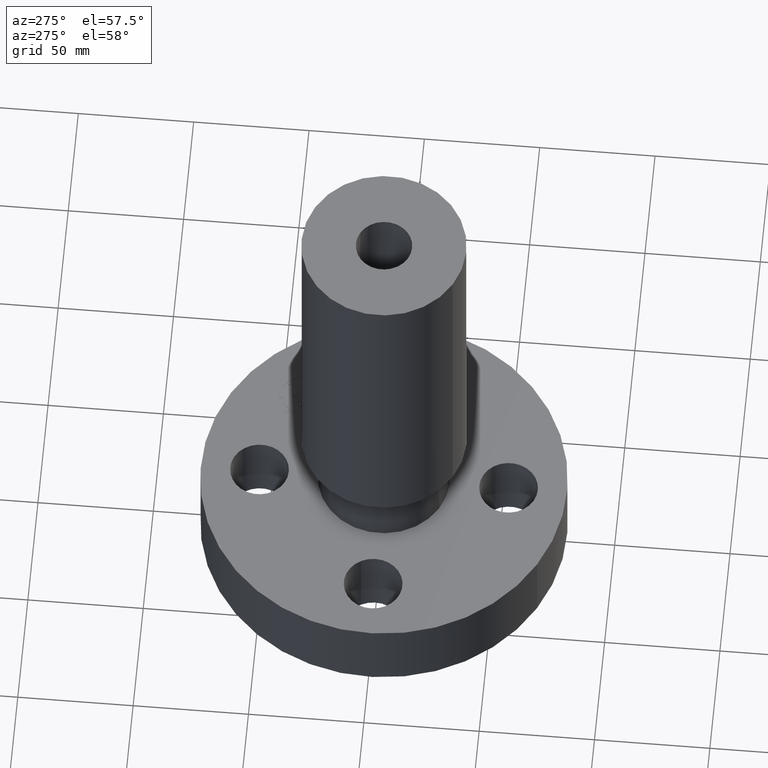
[diagram: clean part render]
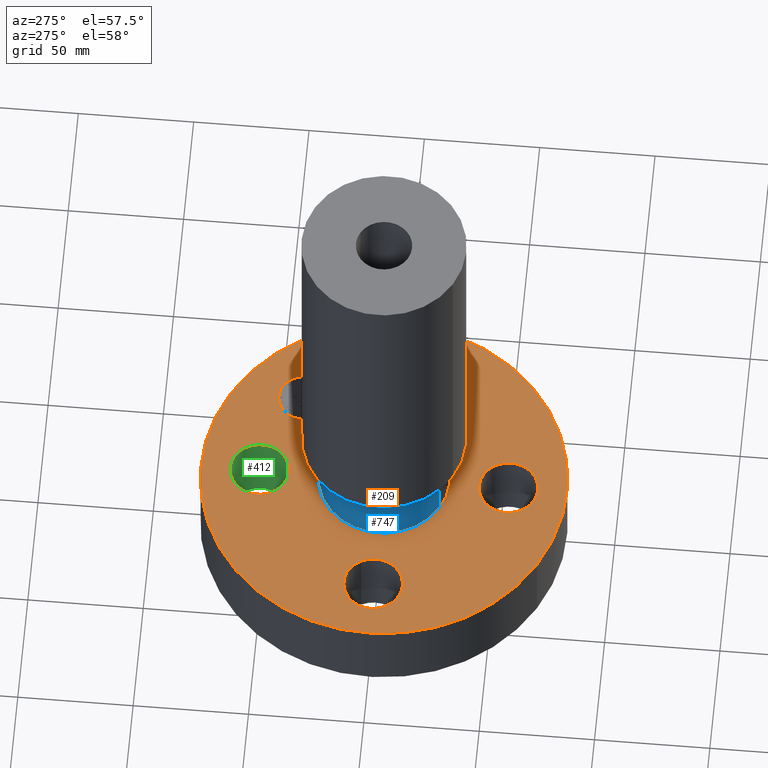
[diagram: same view with three faces highlighted in distinct colors, each labeled with its STEP entity id]
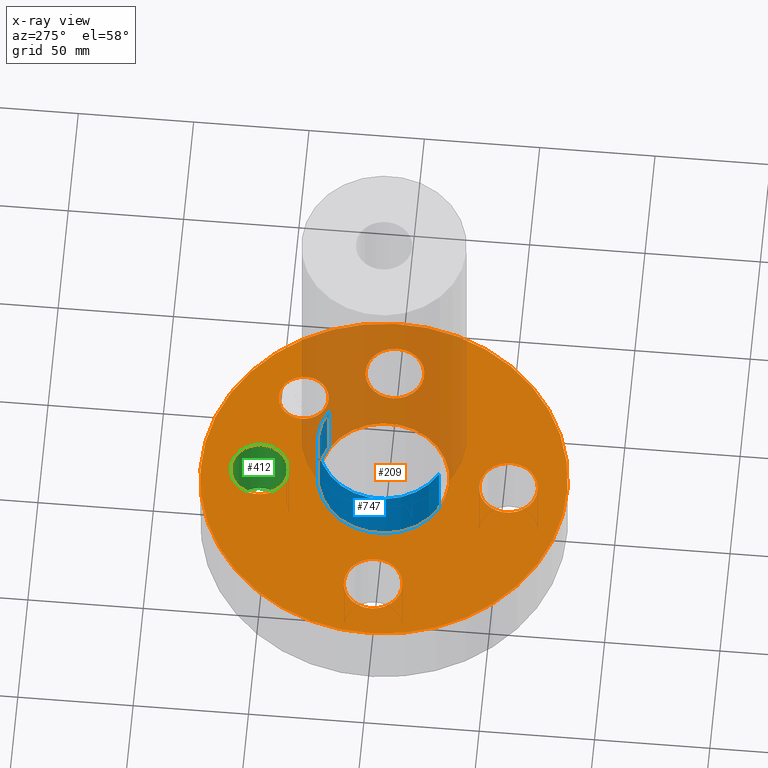
[diagram: x-ray of the same camera — body ghosted, the three highlighted faces saturated]
A machine part, auxiliary view with three faces highlighted in distinct colors.
The next image is the same camera in x-ray (body ghosted, the three faces saturated) — at least one of them is partly hidden behind the body in this view.
Their STEP definitions:

[orange] entity #209 — the highlighted planar face has unit normal (0, 0, -1).
#51=AXIS2_PLACEMENT_3D('Circle Axis2P3D',#49,#50,$) ;
#77=AXIS2_PLACEMENT_3D('Circle Axis2P3D',#75,#76,$) ;
#95=AXIS2_PLACEMENT_3D('Plane Axis2P3D',#92,#93,#94) ;
#99=AXIS2_PLACEMENT_3D('Circle Axis2P3D',#97,#98,$) ;
#108=AXIS2_PLACEMENT_3D('Circle Axis2P3D',#106,#107,$) ;
#121=AXIS2_PLACEMENT_3D('Circle Axis2P3D',#119,#120,$) ;
#130=AXIS2_PLACEMENT_3D('Circle Axis2P3D',#128,#129,$) ;
#139=AXIS2_PLACEMENT_3D('Circle Axis2P3D',#137,#138,$) ;
#148=AXIS2_PLACEMENT_3D('Circle Axis2P3D',#146,#147,$) ;
#157=AXIS2_PLACEMENT_3D('Circle Axis2P3D',#155,#156,$) ;
#166=AXIS2_PLACEMENT_3D('Circle Axis2P3D',#164,#165,$) ;
#175=AXIS2_PLACEMENT_3D('Circle Axis2P3D',#173,#174,$) ;
#184=AXIS2_PLACEMENT_3D('Circle Axis2P3D',#182,#183,$) ;
#193=AXIS2_PLACEMENT_3D('Circle Axis2P3D',#191,#192,$) ;
#202=AXIS2_PLACEMENT_3D('Circle Axis2P3D',#200,#201,$) ;
#44=CARTESIAN_POINT('Vertex',(1.68620871906,-0.239712769303,1.38000000001)) ;
#49=CARTESIAN_POINT('Axis2P3D Location',(2.12500000001,0.,1.38000000001)) ;
#53=CARTESIAN_POINT('Vertex',(2.56379128096,0.239712769303,1.38000000001)) ;
#75=CARTESIAN_POINT('Axis2P3D Location',(2.12500000001,0.,1.38000000001)) ;
#92=CARTESIAN_POINT('Axis2P3D Location',(0.,3.12500000001,1.38000000001)) ;
#97=CARTESIAN_POINT('Axis2P3D Location',(0.,0.,1.38000000001)) ;
#101=CARTESIAN_POINT('Vertex',(1.49820480814,2.74244550592,1.38000000001)) ;
#103=CARTESIAN_POINT('Vertex',(-1.49820480814,-2.74244550592,1.38000000001)) ;
#106=CARTESIAN_POINT('Axis2P3D Location',(0.,0.,1.38000000001)) ;
#119=CARTESIAN_POINT('Axis2P3D Location',(0.,0.,1.38000000001)) ;
#123=CARTESIAN_POINT('Vertex',(-0.532162347853,-0.974116643702,1.38000000001)) ;
#125=CARTESIAN_POINT('Vertex',(0.532162347853,0.974116643702,1.38000000001)) ;
#128=CARTESIAN_POINT('Axis2P3D Location',(0.,0.,1.38000000001)) ;
#137=CARTESIAN_POINT('Axis2P3D Location',(-2.79741234551E-016,-2.12500000001,1.38000000001)) ;
#141=CARTESIAN_POINT('Vertex',(-0.239712769303,-1.68620871906,1.38000000001)) ;
#143=CARTESIAN_POINT('Vertex',(0.239712769303,-2.56379128096,1.38000000001)) ;
#146=CARTESIAN_POINT('Axis2P3D Location',(2.09805925913E-016,-2.12500000001,1.38000000001)) ;
#155=CARTESIAN_POINT('Axis2P3D Location',(-2.12500000001,0.,1.38000000001)) ;
#159=CARTESIAN_POINT('Vertex',(-1.68620871906,0.239712769303,1.38000000001)) ;
#161=CARTESIAN_POINT('Vertex',(-2.56379128096,-0.239712769303,1.38000000001)) ;
#164=CARTESIAN_POINT('Axis2P3D Location',(-2.12500000001,0.,1.38000000001)) ;
#173=CARTESIAN_POINT('Axis2P3D Location',(-6.99353086378E-017,2.12500000001,1.38000000001)) ;
#177=CARTESIAN_POINT('Vertex',(0.239712769303,1.68620871906,1.38000000001)) ;
#179=CARTESIAN_POINT('Vertex',(-0.239712769303,2.56379128096,1.38000000001)) ;
#182=CARTESIAN_POINT('Axis2P3D Location',(-2.09805925913E-016,2.12500000001,1.38000000001)) ;
#191=CARTESIAN_POINT('Axis2P3D Location',(1.50260191003,1.50260191003,1.38000000001)) ;
#195=CARTESIAN_POINT('Vertex',(1.80312228903,1.20208153103,1.38000000001)) ;
#197=CARTESIAN_POINT('Vertex',(1.20208153103,1.80312228903,1.38000000001)) ;
#200=CARTESIAN_POINT('Axis2P3D Location',(1.50260191003,1.50260191003,1.38000000001)) ;
#50=DIRECTION('Axis2P3D Direction',(0.,-0.,0.0393700787402)) ;
#76=DIRECTION('Axis2P3D Direction',(0.,-0.,0.0393700787402)) ;
#93=DIRECTION('Axis2P3D Direction',(0.,0.,-0.0393700787402)) ;
#94=DIRECTION('Axis2P3D XDirection',(0.0393700787402,0.,0.)) ;
#98=DIRECTION('Axis2P3D Direction',(0.,0.,-0.0393700787402)) ;
#107=DIRECTION('Axis2P3D Direction',(0.,0.,-0.0393700787402)) ;
#120=DIRECTION('Axis2P3D Direction',(0.,0.,-0.0393700787402)) ;
#129=DIRECTION('Axis2P3D Direction',(0.,0.,-0.0393700787402)) ;
#138=DIRECTION('Axis2P3D Direction',(0.,0.,-0.0393700787402)) ;
#147=DIRECTION('Axis2P3D Direction',(0.,0.,-0.0393700787402)) ;
#156=DIRECTION('Axis2P3D Direction',(0.,0.,-0.0393700787402)) ;
#165=DIRECTION('Axis2P3D Direction',(0.,0.,-0.0393700787402)) ;
#174=DIRECTION('Axis2P3D Direction',(0.,0.,-0.0393700787402)) ;
#183=DIRECTION('Axis2P3D Direction',(0.,0.,-0.0393700787402)) ;
#192=DIRECTION('Axis2P3D Direction',(0.,0.,-0.0393700787402)) ;
#201=DIRECTION('Axis2P3D Direction',(0.,0.,-0.0393700787402)) ;
#112=ORIENTED_EDGE('',*,*,#105,.F.) ;
#113=ORIENTED_EDGE('',*,*,#110,.F.) ;
#116=ORIENTED_EDGE('',*,*,#55,.T.) ;
#117=ORIENTED_EDGE('',*,*,#79,.T.) ;
#134=ORIENTED_EDGE('',*,*,#127,.T.) ;
#135=ORIENTED_EDGE('',*,*,#132,.T.) ;
#152=ORIENTED_EDGE('',*,*,#145,.T.) ;
#153=ORIENTED_EDGE('',*,*,#150,.T.) ;
#170=ORIENTED_EDGE('',*,*,#163,.T.) ;
#171=ORIENTED_EDGE('',*,*,#168,.T.) ;
#188=ORIENTED_EDGE('',*,*,#181,.T.) ;
#189=ORIENTED_EDGE('',*,*,#186,.T.) ;
#206=ORIENTED_EDGE('',*,*,#199,.F.) ;
#207=ORIENTED_EDGE('',*,*,#204,.F.) ;
#118=FACE_BOUND('',#115,.T.) ;
#136=FACE_BOUND('',#133,.T.) ;
#154=FACE_BOUND('',#151,.T.) ;
#172=FACE_BOUND('',#169,.T.) ;
#190=FACE_BOUND('',#187,.T.) ;
#208=FACE_BOUND('',#205,.T.) ;
#209=ADVANCED_FACE('PartBody',(#114,#118,#136,#154,#172,#190,#208),#96,.F.) ;
#52=CIRCLE('generated circle',#51,0.500000000002) ;
#78=CIRCLE('generated circle',#77,0.500000000002) ;
#100=CIRCLE('generated circle',#99,3.12500000001) ;
#109=CIRCLE('generated circle',#108,3.12500000001) ;
#122=CIRCLE('generated circle',#121,1.11) ;
#131=CIRCLE('generated circle',#130,1.11) ;
#140=CIRCLE('generated circle',#139,0.500000000002) ;
#149=CIRCLE('generated circle',#148,0.500000000002) ;
#158=CIRCLE('generated circle',#157,0.500000000002) ;
#167=CIRCLE('generated circle',#166,0.500000000002) ;
#176=CIRCLE('generated circle',#175,0.500000000002) ;
#185=CIRCLE('generated circle',#184,0.500000000002) ;
#194=CIRCLE('generated circle',#193,0.424999995752) ;
#203=CIRCLE('generated circle',#202,0.424999995752) ;
#55=EDGE_CURVE('',#54,#45,#52,.F.) ;
#79=EDGE_CURVE('',#45,#54,#78,.F.) ;
#105=EDGE_CURVE('',#102,#104,#100,.T.) ;
#110=EDGE_CURVE('',#104,#102,#109,.T.) ;
#127=EDGE_CURVE('',#124,#126,#122,.T.) ;
#132=EDGE_CURVE('',#126,#124,#131,.T.) ;
#145=EDGE_CURVE('',#142,#144,#140,.T.) ;
#150=EDGE_CURVE('',#144,#142,#149,.T.) ;
#163=EDGE_CURVE('',#160,#162,#158,.T.) ;
#168=EDGE_CURVE('',#162,#160,#167,.T.) ;
#181=EDGE_CURVE('',#178,#180,#176,.T.) ;
#186=EDGE_CURVE('',#180,#178,#185,.T.) ;
#199=EDGE_CURVE('',#196,#198,#194,.F.) ;
#204=EDGE_CURVE('',#198,#196,#203,.F.) ;
#111=EDGE_LOOP('',(#112,#113)) ;
#115=EDGE_LOOP('',(#116,#117)) ;
#133=EDGE_LOOP('',(#134,#135)) ;
#151=EDGE_LOOP('',(#152,#153)) ;
#169=EDGE_LOOP('',(#170,#171)) ;
#187=EDGE_LOOP('',(#188,#189)) ;
#205=EDGE_LOOP('',(#206,#207)) ;
#114=FACE_OUTER_BOUND('',#111,.T.) ;
#96=PLANE('',#95) ;
#45=VERTEX_POINT('',#44) ;
#54=VERTEX_POINT('',#53) ;
#102=VERTEX_POINT('',#101) ;
#104=VERTEX_POINT('',#103) ;
#124=VERTEX_POINT('',#123) ;
#126=VERTEX_POINT('',#125) ;
#142=VERTEX_POINT('',#141) ;
#144=VERTEX_POINT('',#143) ;
#160=VERTEX_POINT('',#159) ;
#162=VERTEX_POINT('',#161) ;
#178=VERTEX_POINT('',#177) ;
#180=VERTEX_POINT('',#179) ;
#196=VERTEX_POINT('',#195) ;
#198=VERTEX_POINT('',#197) ;

[blue] entity #747 — the highlighted cylindrical surface (partial cylindrical patch) has radius 28.575 mm, axis along (0, 0, -1).
#516=AXIS2_PLACEMENT_3D('Circle Axis2P3D',#514,#515,$) ;
#708=AXIS2_PLACEMENT_3D('Cylinder Axis2P3D',#705,#706,#707) ;
#738=AXIS2_PLACEMENT_3D('Circle Axis2P3D',#736,#737,$) ;
#492=CARTESIAN_POINT('Vertex',(0.539353730932,0.987280382131,1.42098076212)) ;
#499=CARTESIAN_POINT('Vertex',(-0.539353730932,-0.987280382131,1.42098076212)) ;
#514=CARTESIAN_POINT('Axis2P3D Location',(0.,0.,1.42098076212)) ;
#705=CARTESIAN_POINT('Axis2P3D Location',(0.,0.,4.25000000002)) ;
#710=CARTESIAN_POINT('Line Origine',(0.539353730932,0.987280382131,1.96049038106)) ;
#714=CARTESIAN_POINT('Vertex',(0.539353730932,0.987280382131,2.50000000001)) ;
#721=CARTESIAN_POINT('Vertex',(-0.539353730932,-0.987280382131,2.50000000001)) ;
#724=CARTESIAN_POINT('Line Origine',(-0.539353730932,-0.987280382131,1.96049038106)) ;
#736=CARTESIAN_POINT('Axis2P3D Location',(0.,0.,2.50000000001)) ;
#515=DIRECTION('Axis2P3D Direction',(-0.,0.,0.0393700787402)) ;
#706=DIRECTION('Axis2P3D Direction',(0.,0.,-0.0393700787402)) ;
#707=DIRECTION('Axis2P3D XDirection',(-0.0188750212049,-0.0345504945626,0.)) ;
#711=DIRECTION('Vector Direction',(0.,0.,-0.0393700787402)) ;
#725=DIRECTION('Vector Direction',(0.,0.,-0.0393700787402)) ;
#737=DIRECTION('Axis2P3D Direction',(0.,0.,-0.0393700787402)) ;
#712=VECTOR('Line Direction',#711,0.0393700787402) ;
#726=VECTOR('Line Direction',#725,0.0393700787402) ;
#742=ORIENTED_EDGE('',*,*,#518,.F.) ;
#743=ORIENTED_EDGE('',*,*,#728,.T.) ;
#744=ORIENTED_EDGE('',*,*,#740,.T.) ;
#745=ORIENTED_EDGE('',*,*,#716,.F.) ;
#747=ADVANCED_FACE('PartBody',(#746),#709,.T.) ;
#517=CIRCLE('generated circle',#516,1.125) ;
#739=CIRCLE('generated circle',#738,1.125) ;
#709=CYLINDRICAL_SURFACE('generated cylinder',#708,1.125) ;
#518=EDGE_CURVE('',#500,#493,#517,.F.) ;
#716=EDGE_CURVE('',#493,#715,#713,.F.) ;
#728=EDGE_CURVE('',#500,#722,#727,.F.) ;
#740=EDGE_CURVE('',#722,#715,#739,.T.) ;
#741=EDGE_LOOP('',(#742,#743,#744,#745)) ;
#746=FACE_OUTER_BOUND('',#741,.T.) ;
#713=LINE('Line',#710,#712) ;
#727=LINE('Line',#724,#726) ;
#493=VERTEX_POINT('',#492) ;
#500=VERTEX_POINT('',#499) ;
#715=VERTEX_POINT('',#714) ;
#722=VERTEX_POINT('',#721) ;

[green] entity #412 — the highlighted cylindrical surface (edge-blend (fillet) strip) has radius 12.7 mm, axis along (0, 0, 1).
#184=AXIS2_PLACEMENT_3D('Circle Axis2P3D',#182,#183,$) ;
#385=AXIS2_PLACEMENT_3D('Cylinder Axis2P3D',#382,#383,#384) ;
#403=AXIS2_PLACEMENT_3D('Circle Axis2P3D',#401,#402,$) ;
#177=CARTESIAN_POINT('Vertex',(0.239712769303,1.68620871906,1.38000000001)) ;
#179=CARTESIAN_POINT('Vertex',(-0.239712769303,2.56379128096,1.38000000001)) ;
#182=CARTESIAN_POINT('Axis2P3D Location',(-2.09805925913E-016,2.12500000001,1.38000000001)) ;
#382=CARTESIAN_POINT('Axis2P3D Location',(-1.10614932679E-016,2.12500000001,0.00393700787402)) ;
#387=CARTESIAN_POINT('Line Origine',(0.239712769303,1.68620871906,0.690000000003)) ;
#391=CARTESIAN_POINT('Vertex',(0.239712769303,1.68620871906,2.2401153548E-016)) ;
#394=CARTESIAN_POINT('Line Origine',(-0.239712769303,2.56379128096,0.690000000003)) ;
#398=CARTESIAN_POINT('Vertex',(-0.239712769303,2.56379128096,2.2401153548E-016)) ;
#401=CARTESIAN_POINT('Axis2P3D Location',(-1.10614932679E-016,2.12500000001,0.)) ;
#183=DIRECTION('Axis2P3D Direction',(0.,0.,-0.0393700787402)) ;
#383=DIRECTION('Axis2P3D Direction',(0.,0.,0.0393700787402)) ;
#384=DIRECTION('Axis2P3D XDirection',(-0.0188750212049,0.0345504945626,0.)) ;
#388=DIRECTION('Vector Direction',(0.,0.,0.0393700787402)) ;
#395=DIRECTION('Vector Direction',(0.,0.,0.0393700787402)) ;
#402=DIRECTION('Axis2P3D Direction',(0.,0.,0.0393700787402)) ;
#389=VECTOR('Line Direction',#388,0.0393700787402) ;
#396=VECTOR('Line Direction',#395,0.0393700787402) ;
#407=ORIENTED_EDGE('',*,*,#393,.F.) ;
#408=ORIENTED_EDGE('',*,*,#186,.F.) ;
#409=ORIENTED_EDGE('',*,*,#400,.T.) ;
#410=ORIENTED_EDGE('',*,*,#405,.T.) ;
#412=ADVANCED_FACE('PartBody',(#411),#386,.F.) ;
#185=CIRCLE('generated circle',#184,0.500000000002) ;
#404=CIRCLE('generated circle',#403,0.500000000002) ;
#386=CYLINDRICAL_SURFACE('generated cylinder',#385,0.500000000002) ;
#186=EDGE_CURVE('',#180,#178,#185,.T.) ;
#393=EDGE_CURVE('',#178,#392,#390,.F.) ;
#400=EDGE_CURVE('',#180,#399,#397,.F.) ;
#405=EDGE_CURVE('',#399,#392,#404,.F.) ;
#406=EDGE_LOOP('',(#407,#408,#409,#410)) ;
#411=FACE_OUTER_BOUND('',#406,.T.) ;
#390=LINE('Line',#387,#389) ;
#397=LINE('Line',#394,#396) ;
#178=VERTEX_POINT('',#177) ;
#180=VERTEX_POINT('',#179) ;
#392=VERTEX_POINT('',#391) ;
#399=VERTEX_POINT('',#398) ;